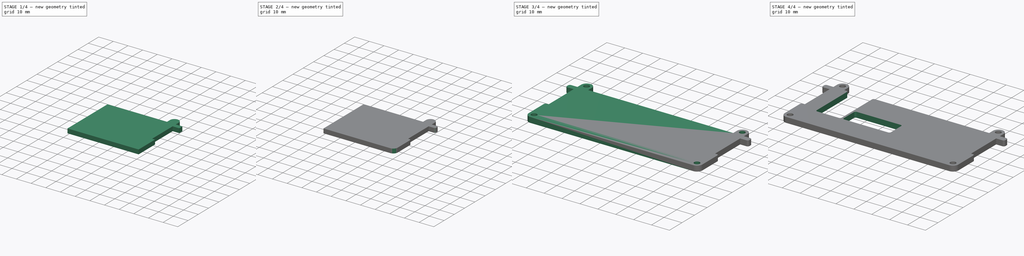
[diagram: build sequence overview — one tinted view per stage of 4, left to right]
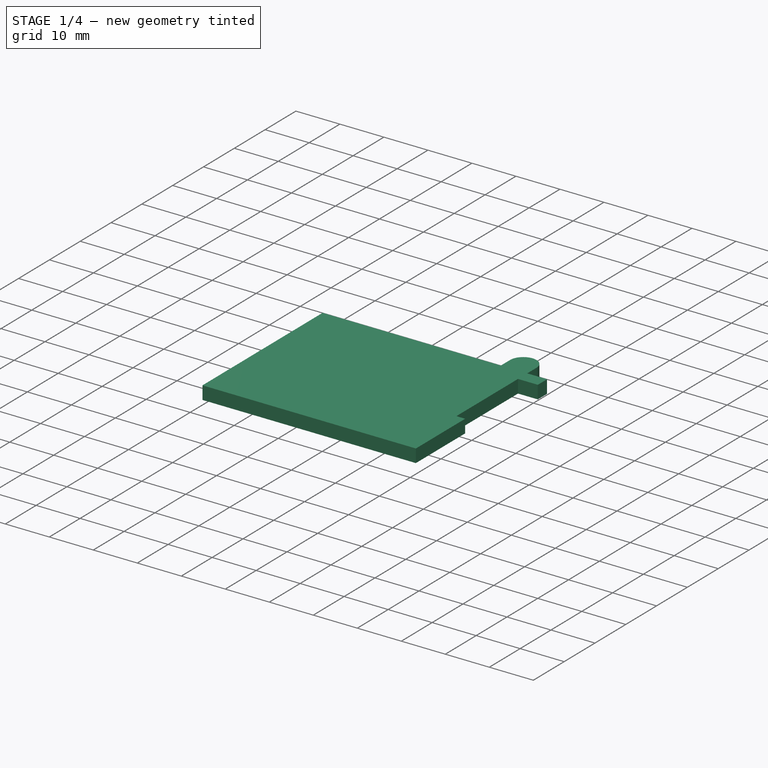
[diagram: stage 1 of 4 — iso view after this stage's code; geometry added in this stage tinted green]
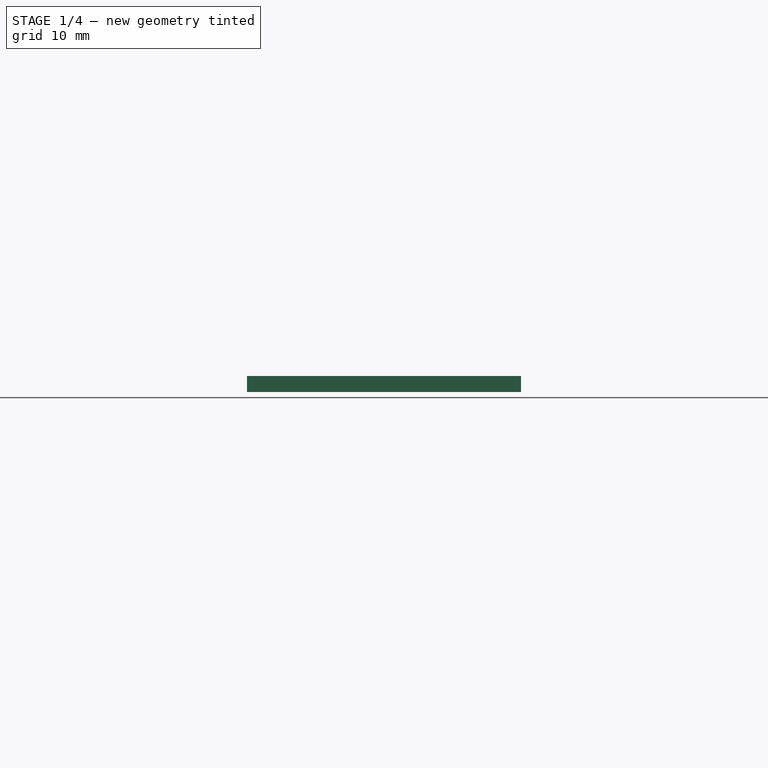
[diagram: stage 1 of 4 — front view after this stage's code; geometry added in this stage tinted green]
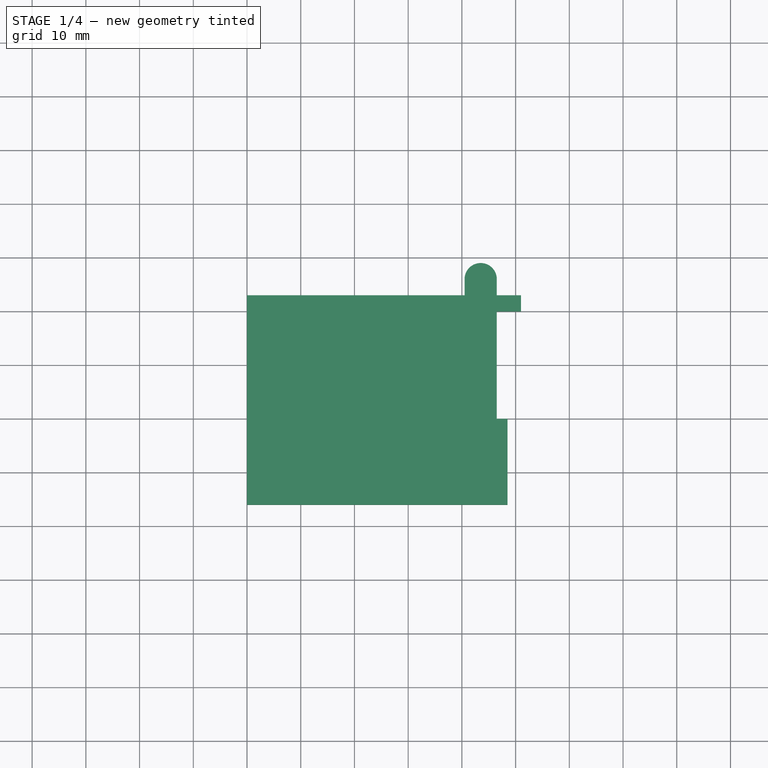
[diagram: stage 1 of 4 — top view after this stage's code; geometry added in this stage tinted green]
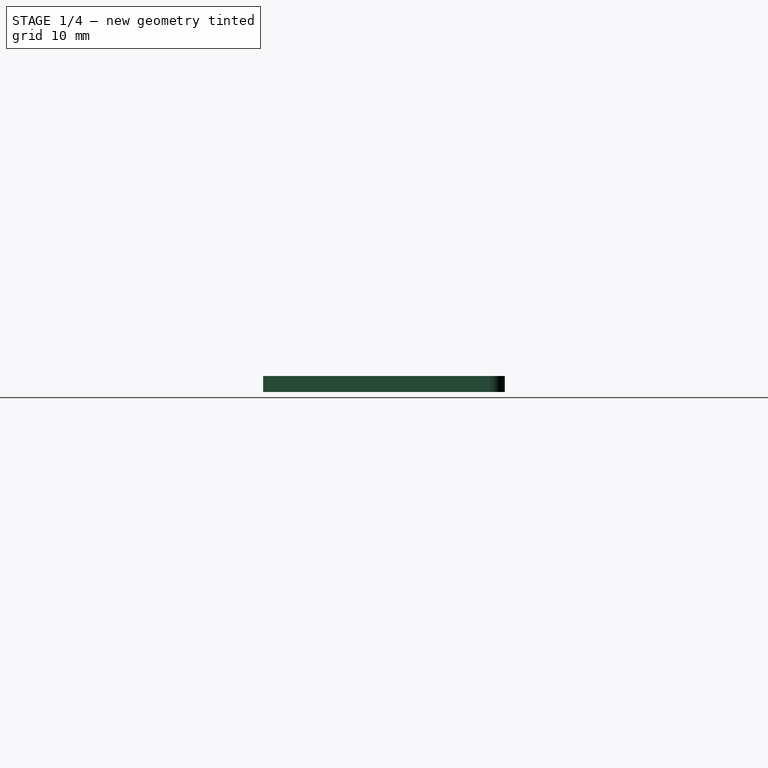
[diagram: stage 1 of 4 — right view after this stage's code; geometry added in this stage tinted green]
FCSTD DOCUMENT  (FreeCAD 1.0R39319 (Git))
Label: Pi5_Bagpack_bottom
License: All rights reserved
LicenseURL: https://en.wikipedia.org/wiki/All_rights_reserved
objects: Sketcher::SketchObject×5, PartDesign::Fillet×4, PartDesign::Pad×3, PartDesign::Pocket×2, PartDesign::Mirrored×1, PartDesign::Body×1, App::Part×1
note: 40 computed .brp shape members not serialized (recipe doc carries the construction recipe); baked Part::Feature solids carry a one-line shape summary decoded from their .brp

FEATURE [Sketcher::SketchObject] Sketch
  ArcFitTolerance = 1e-06
  AttachmentSupport = -> [XY_Plane001]
  FullyConstrained = true
  MakeInternals = false
  MapMode = 5
  sketch-geometry (8):
    g0: LineSegment StartX=0 StartY=3 StartZ=0 EndX=51 EndY=3 EndZ=0
    g1: LineSegment StartX=51 StartY=3 StartZ=0 EndX=51 EndY=0 EndZ=0
    g2: LineSegment StartX=51 StartY=0 StartZ=0 EndX=46.5 EndY=0 EndZ=0
    g3: LineSegment StartX=48.5 StartY=-36 StartZ=0 EndX=0 EndY=-36 EndZ=0
    g4: LineSegment StartX=48.5 StartY=-36 StartZ=0 EndX=48.5 EndY=-20 EndZ=0
    g5: LineSegment StartX=48.5 StartY=-20 StartZ=0 EndX=46.5 EndY=-20 EndZ=0
    g6: LineSegment StartX=46.5 StartY=-20 StartZ=0 EndX=46.5 EndY=0 EndZ=0
    g7: LineSegment StartX=0 StartY=-36 StartZ=0 EndX=0 EndY=3 EndZ=0
  constraints (24):
    c: PointOnObject(g3,g-2)
    c: Horizontal(g0)
    c: Coincident(g0,g1)
    c: PointOnObject(g1,g-1)
    c: Coincident(g1,g2)
    c: PointOnObject(g2,g-1)
    c: Horizontal(g3)
    c: Distance(g2,g0) = 3
    c: Vertical(g1)
    c: Distance(g1,g-2) = 51
    c: Coincident(g3,g4)
    c: Vertical(g4)
    c: Coincident(g4,g5)
    c: Coincident(g5,g6)
    c: Coincident(g6,g2)
    c: Horizontal(g5)
    c: Vertical(g6)
    c: Coincident(g7,g3)
    c: Coincident(g7,g0)
    c: PointOnObject(g0,g-2)
    c: Distance(g4,g7) = 48.5
    c: Distance(g7,g6) = 46.5
    c: Distance(g0,g3) = 39
    c: Distance(g3,g5) = 16
FEATURE [PartDesign::Pad] Pad
  Direction = (0,0,1)
  Length = 3
  Length2 = 10
  Profile = -> Sketch
  ReferenceAxis = -> Sketch [N_Axis]
  Refine = true
  Suppressed = false
  Type = 0
FEATURE [Sketcher::SketchObject] Sketch001
  ArcFitTolerance = 1e-06
  AttachmentSupport = -> [Pad]
  ExternalGeometry = -> [Pad]
  FullyConstrained = false
  MakeInternals = false
  MapMode = 5
  Placement = pos=(0,0,3) rot=(0,0,1;0rad)
  sketch-geometry (5):
    g0: LineSegment [constr] StartX=43.5 StartY=-11.2793 StartZ=0 EndX=43.5 EndY=3 EndZ=0
    g1: LineSegment StartX=46.5 StartY=6 StartZ=0 EndX=46.5 EndY=3 EndZ=0
    g2: LineSegment StartX=46.5 StartY=3 StartZ=0 EndX=40.5 EndY=3 EndZ=0
    g3: LineSegment StartX=40.5 StartY=3 StartZ=0 EndX=40.5 EndY=6 EndZ=0
    g4: ArcOfCircle CenterX=43.5 CenterY=6 CenterZ=0 NormalX=0 NormalY=0 NormalZ=1 AngleXU=0 Radius=3 StartAngle=0 EndAngle=3.14159
  constraints (14):
    c: Vertical(g0)
    c: PointOnObject(g0,g-4)
    c: Distance(g-3,g0) = 3
    c: PointOnObject(g1,g-4)
    c: Vertical(g1)
    c: Coincident(g1,g2)
    c: PointOnObject(g2,g-4)
    c: Coincident(g2,g3)
    c: Vertical(g3)
    c: Tangent(g3,g4) = 1.5708
    c: Tangent(g4,g1) = 1.5708
    c: Radius(g4) = 3
    c: DistanceY(g1,g1) = 3
    c: PointOnObject(g1,g-3)
FEATURE [PartDesign::Pad] Pad001
  BaseFeature = -> Pad
  Direction = (0,0,1)
  Length = 10
  Length2 = 10
  Profile = -> Sketch001
  ReferenceAxis = -> Sketch001 [N_Axis]
  Refine = true
  Suppressed = false
  Type = 3
  UpToFace = -> Pad [Face9]
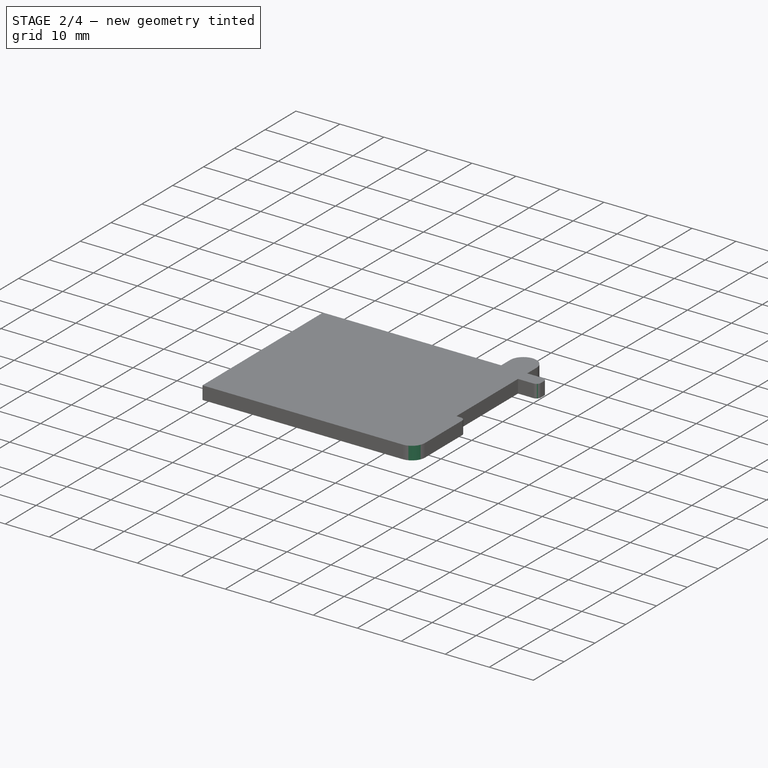
[diagram: stage 2 of 4 — iso view after this stage's code; geometry added in this stage tinted green]
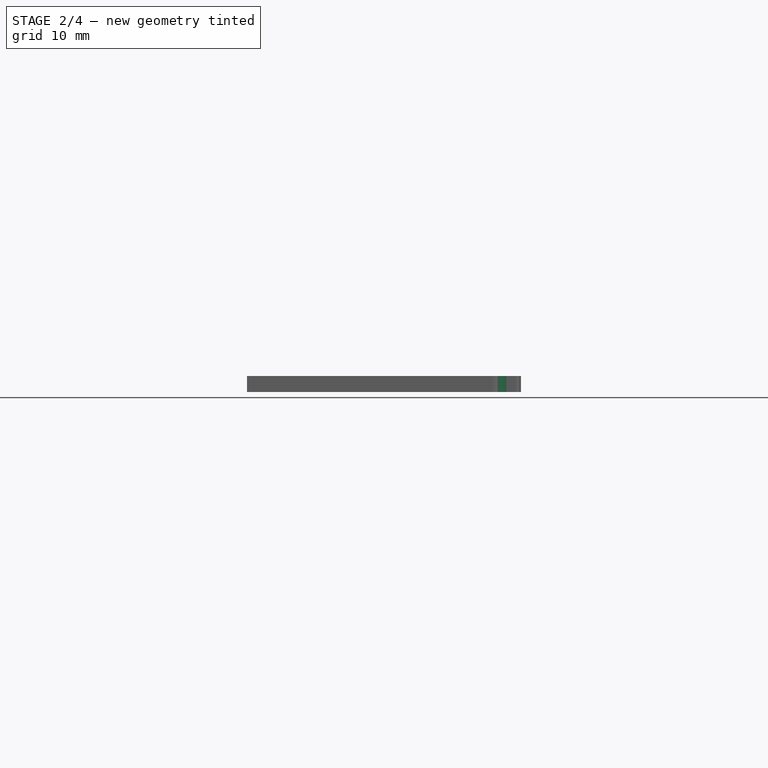
[diagram: stage 2 of 4 — front view after this stage's code; geometry added in this stage tinted green]
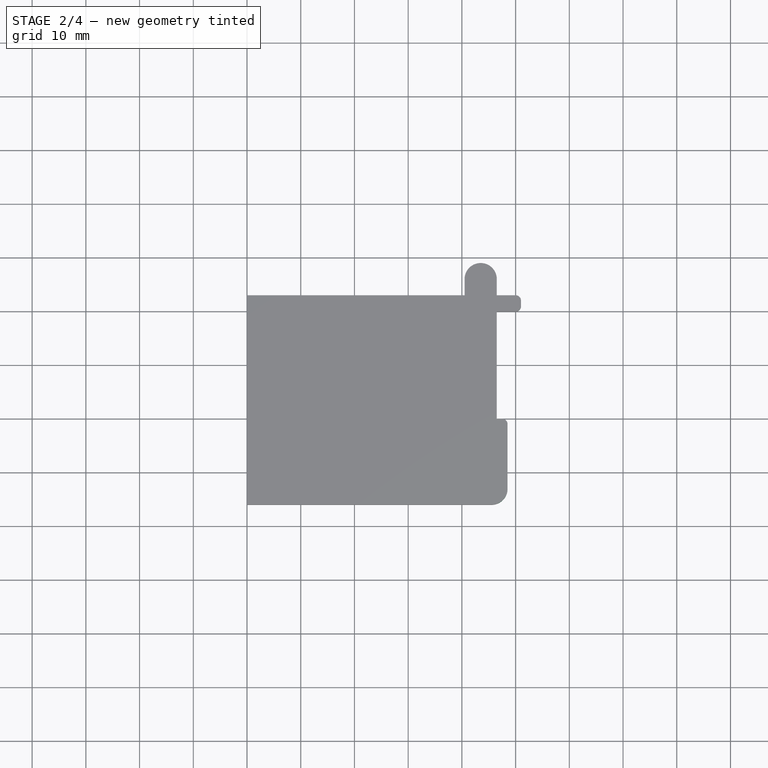
[diagram: stage 2 of 4 — top view after this stage's code; geometry added in this stage tinted green]
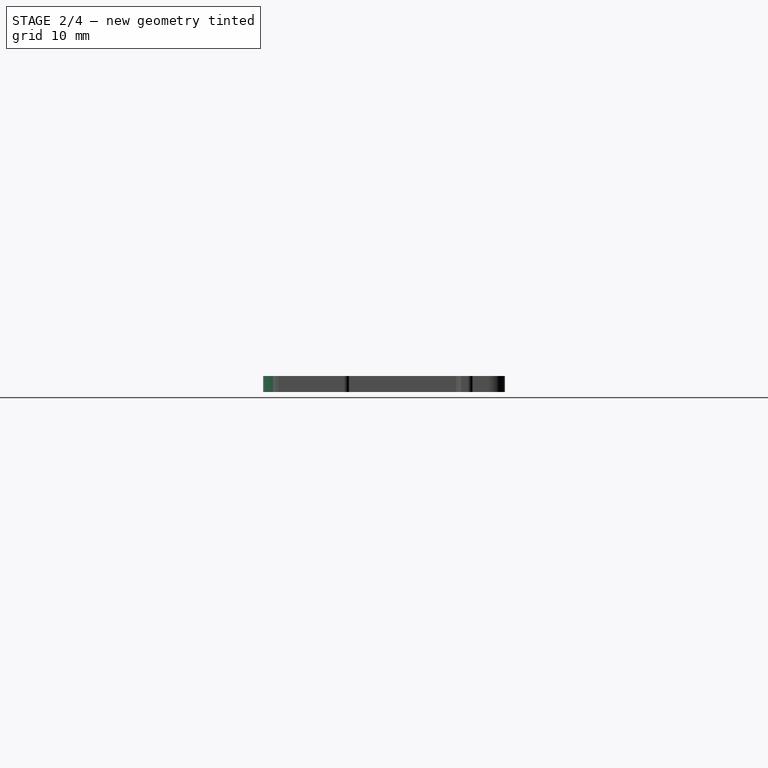
[diagram: stage 2 of 4 — right view after this stage's code; geometry added in this stage tinted green]
FEATURE [PartDesign::Fillet] Fillet
  Base = -> Pad001 [Edge1]
  BaseFeature = -> Pad001
  Radius = 3
  Refine = true
  SupportTransform = false
  Suppressed = false
  UseAllEdges = false
FEATURE [PartDesign::Fillet] Fillet001
  Base = -> Fillet [Edge31]
  BaseFeature = -> Fillet
  Radius = 1
  Refine = true
  SupportTransform = false
  Suppressed = false
  UseAllEdges = false
FEATURE [PartDesign::Fillet] Fillet002
  Base = -> Fillet001 [Edge34,Edge30]
  BaseFeature = -> Fillet001
  Radius = 1
  Refine = true
  SupportTransform = false
  Suppressed = false
  UseAllEdges = false
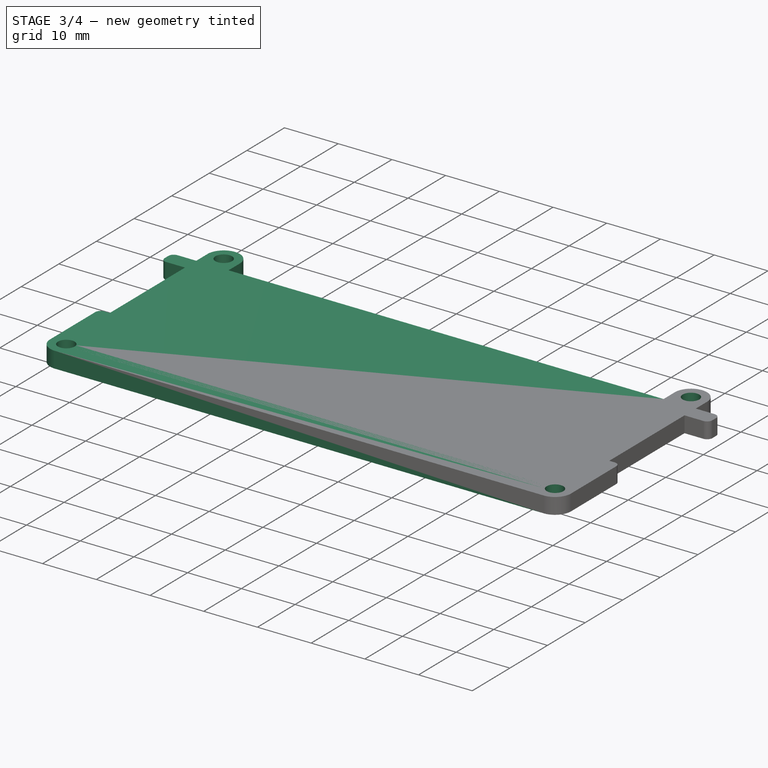
[diagram: stage 3 of 4 — iso view after this stage's code; geometry added in this stage tinted green]
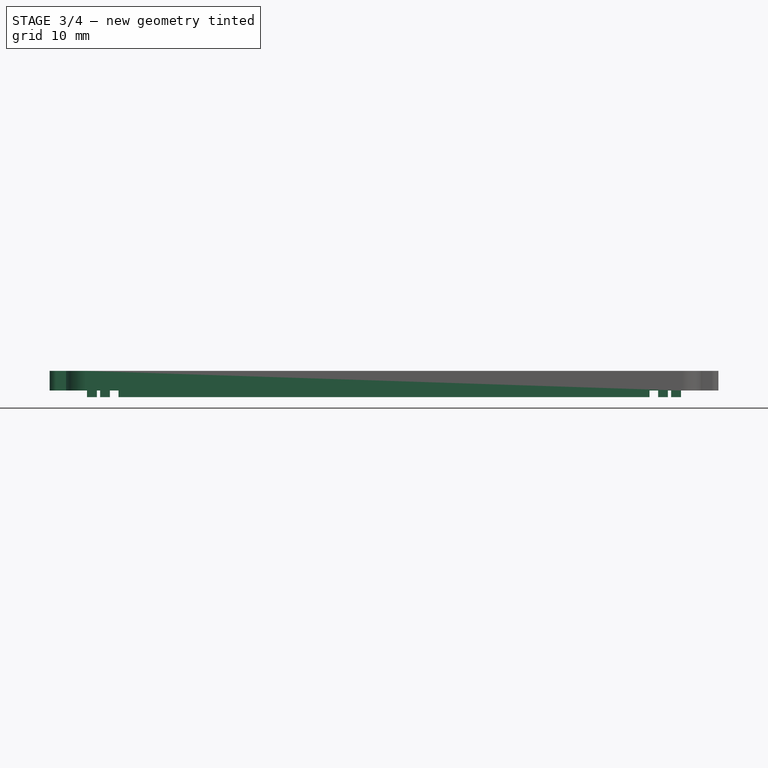
[diagram: stage 3 of 4 — front view after this stage's code; geometry added in this stage tinted green]
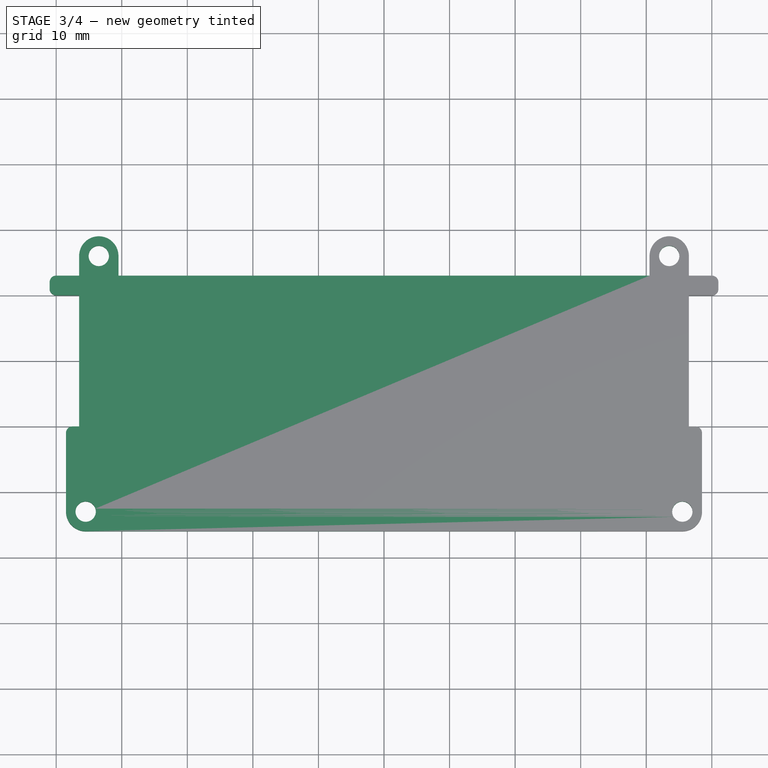
[diagram: stage 3 of 4 — top view after this stage's code; geometry added in this stage tinted green]
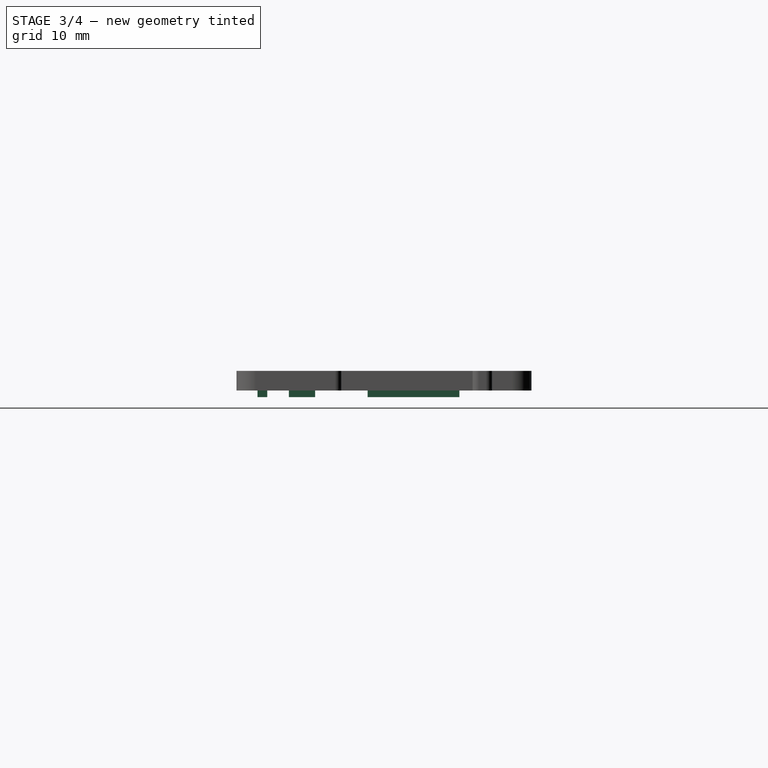
[diagram: stage 3 of 4 — right view after this stage's code; geometry added in this stage tinted green]
FEATURE [Sketcher::SketchObject] Sketch003
  ArcFitTolerance = 1e-06
  FullyConstrained = true
  MakeInternals = false
  MapMode = 5
  Placement = pos=(0,0,-3.7e-15) rot=(1,0,0;3.14159rad)
  sketch-geometry (12):
    g0: LineSegment StartX=41.8 StartY=16 StartZ=0 EndX=41.8 EndY=2 EndZ=0
    g1: LineSegment StartX=41.8 StartY=2 StartZ=0 EndX=43.3 EndY=2 EndZ=0
    g2: LineSegment StartX=43.3 StartY=2 StartZ=0 EndX=43.3 EndY=16 EndZ=0
    g3: LineSegment StartX=43.3 StartY=16 StartZ=0 EndX=41.8 EndY=16 EndZ=0
    g4: LineSegment StartX=43.8 StartY=28 StartZ=0 EndX=43.8 EndY=24 EndZ=0
    g5: LineSegment StartX=43.8 StartY=24 StartZ=0 EndX=45.3 EndY=24 EndZ=0
    g6: LineSegment StartX=45.3 StartY=24 StartZ=0 EndX=45.3 EndY=28 EndZ=0
    g7: LineSegment StartX=45.3 StartY=28 StartZ=0 EndX=43.8 EndY=28 EndZ=0
    g8: LineSegment StartX=40.5 StartY=32.8 StartZ=0 EndX=0 EndY=32.8 EndZ=0
    g9: LineSegment StartX=0 StartY=32.8 StartZ=0 EndX=0 EndY=31.3 EndZ=0
    g10: LineSegment StartX=0 StartY=31.3 StartZ=0 EndX=40.5 EndY=31.3 EndZ=0
    g11: LineSegment StartX=40.5 StartY=31.3 StartZ=0 EndX=40.5 EndY=32.8 EndZ=0
  constraints (36):
    c: Coincident(g0,g1)
    c: Coincident(g1,g2)
    c: Coincident(g2,g3)
    c: Coincident(g3,g0)
    c: Vertical(g0)
    c: Vertical(g2)
    c: Horizontal(g1)
    c: Horizontal(g3)
    c: Coincident(g4,g5)
    c: Coincident(g5,g6)
    c: Coincident(g6,g7)
    c: Coincident(g7,g4)
    c: Vertical(g4)
    c: Vertical(g6)
    c: Horizontal(g5)
    c: Horizontal(g7)
    c: Distance(g2,g0) = 1.5
    c: Distance(g6,g4) = 1.5
    c: Coincident(g8,g9)
    c: Coincident(g9,g10)
    c: Coincident(g10,g11)
    c: Coincident(g11,g8)
    c: Horizontal(g8)
    c: Horizontal(g10)
    c: Vertical(g9)
    c: Vertical(g11)
    c: PointOnObject(g9,g-2)
    c: Distance(g10,g8) = 1.5
    c: Distance(g-5,g8) = 3.2
    c: Distance(g-3,g6) = 3.2
    c: Distance(g-4,g2) = 3.2
    c: Distance(g3,g1) = 14
    c: Distance(g5,g7) = 4
    c: Distance(g9,g11) = 40.5
    c: Distance(g-6,g7) = 5
    c: Distance(g0,g-7) = 5
FEATURE [PartDesign::Pad] Pad002
  BaseFeature = -> Fillet002
  Direction = (0,-1e-16,-1)
  Length = 1
  Length2 = 10
  Profile = -> Sketch003
  ReferenceAxis = -> Sketch003 [N_Axis]
  Refine = true
  Suppressed = false
  Type = 0
FEATURE [Sketcher::SketchObject] Sketch004
  ArcFitTolerance = 1e-06
  AttachmentSupport = -> [Pad002]
  ExternalGeometry = -> [Pad002]
  FullyConstrained = true
  MakeInternals = false
  MapMode = 5
  Placement = pos=(0,0,0) rot=(1,0,0;3.14159rad)
  sketch-geometry (2):
    g0: Circle CenterX=45.5 CenterY=33 CenterZ=0 NormalX=0 NormalY=0 NormalZ=1 AngleXU=0 Radius=1.55
    g1: Circle CenterX=43.5 CenterY=-6 CenterZ=0 NormalX=0 NormalY=0 NormalZ=1 AngleXU=0 Radius=1.55
  constraints (4):
    c: Coincident(g0,g-3)
    c: Coincident(g1,g-4)
    c: Diameter(g0) = 3.1
    c: Diameter(g1) = 3.1
FEATURE [PartDesign::Pocket] Pocket
  BaseFeature = -> Pad002
  Direction = (0,0,1)
  Length = 5
  Length2 = 5
  Profile = -> Sketch004
  ReferenceAxis = -> Sketch004 [N_Axis]
  Refine = true
  Suppressed = false
  Type = 1
FEATURE [PartDesign::Mirrored] Mirrored
  BaseFeature = -> Pocket
  MirrorPlane = -> YZ_Plane001
  Refine = true
  Suppressed = false
  TransformMode = 1
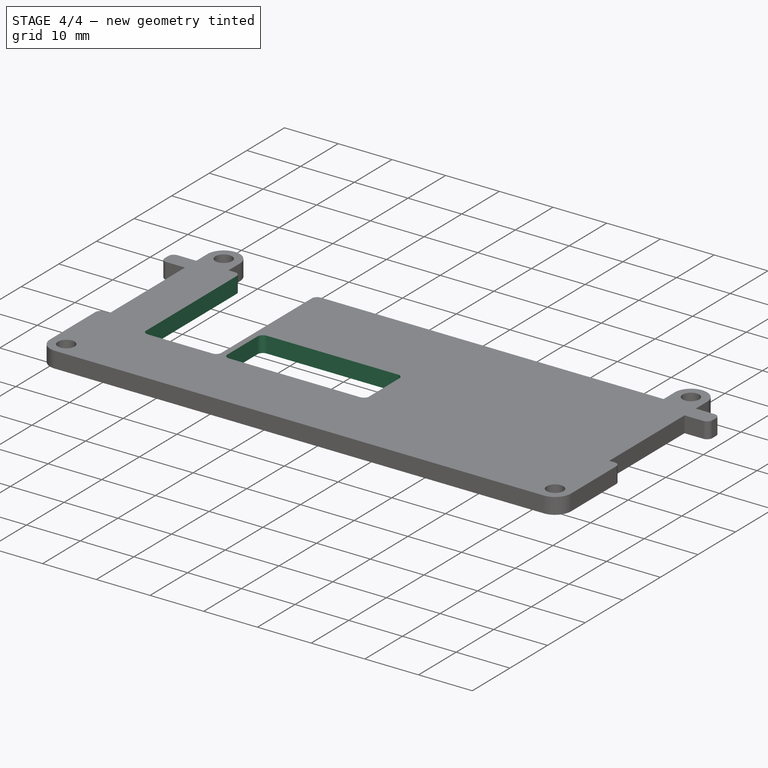
[diagram: stage 4 of 4 — iso view after this stage's code; geometry added in this stage tinted green]
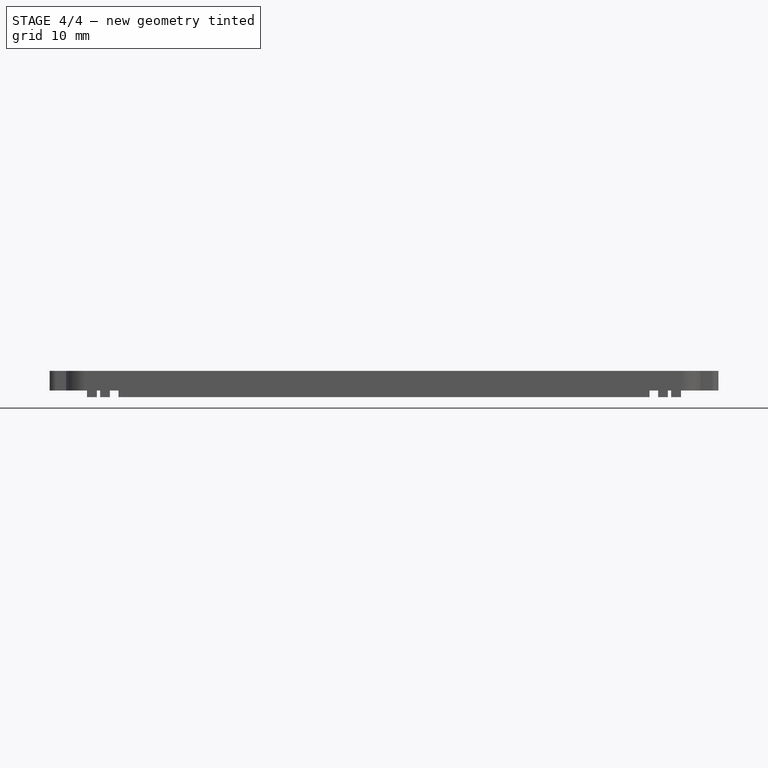
[diagram: stage 4 of 4 — front view after this stage's code; geometry added in this stage tinted green]
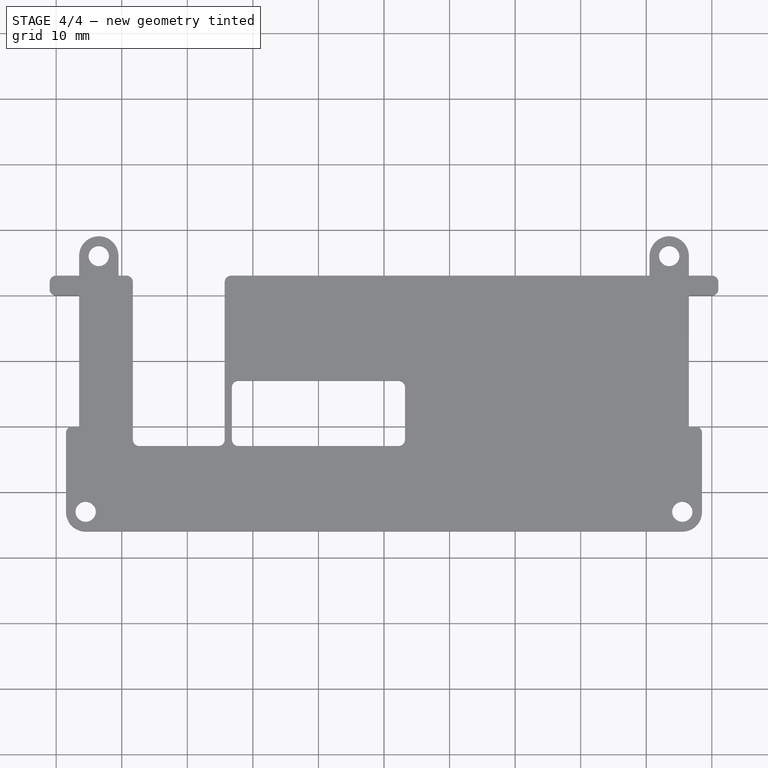
[diagram: stage 4 of 4 — top view after this stage's code; geometry added in this stage tinted green]
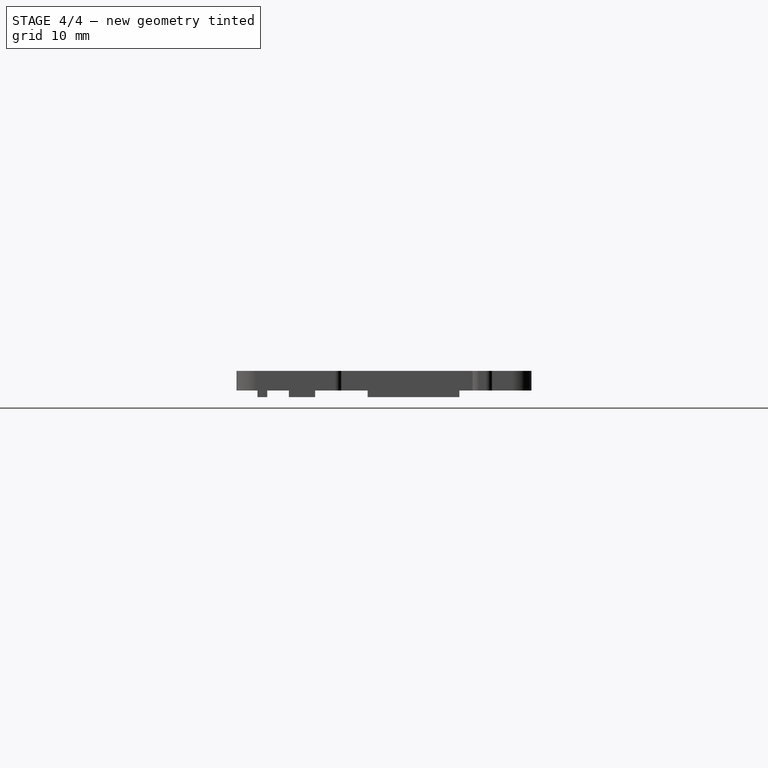
[diagram: stage 4 of 4 — right view after this stage's code; geometry added in this stage tinted green]
FEATURE [Sketcher::SketchObject] Sketch005
  ArcFitTolerance = 1e-06
  AttachmentSupport = -> [Mirrored]
  ExternalGeometry = -> [Mirrored]
  FullyConstrained = true
  MakeInternals = false
  MapMode = 5
  Placement = pos=(0,0,-3.6e-15) rot=(1,0,0;3.14159rad)
  sketch-geometry (8):
    g0: LineSegment StartX=-38.3 StartY=-3 StartZ=0 EndX=-24.3 EndY=-3 EndZ=0
    g1: LineSegment StartX=-24.3 StartY=-3 StartZ=0 EndX=-24.3 EndY=23 EndZ=0
    g2: LineSegment StartX=-24.3 StartY=23 StartZ=0 EndX=-38.3 EndY=23 EndZ=0
    g3: LineSegment StartX=-38.3 StartY=23 StartZ=0 EndX=-38.3 EndY=-3 EndZ=0
    g4: LineSegment StartX=-23.2 StartY=23 StartZ=0 EndX=-23.2 EndY=13 EndZ=0
    g5: LineSegment StartX=-23.2 StartY=13 StartZ=0 EndX=3.2 EndY=13 EndZ=0
    g6: LineSegment StartX=3.2 StartY=13 StartZ=0 EndX=3.2 EndY=23 EndZ=0
    g7: LineSegment StartX=3.2 StartY=23 StartZ=0 EndX=-23.2 EndY=23 EndZ=0
  constraints (24):
    c: Coincident(g0,g1)
    c: Coincident(g1,g2)
    c: Coincident(g2,g3)
    c: Coincident(g3,g0)
    c: Horizontal(g0)
    c: Horizontal(g2)
    c: Vertical(g1)
    c: Vertical(g3)
    c: PointOnObject(g0,g-3)
    c: Coincident(g4,g5)
    c: Coincident(g5,g6)
    c: Coincident(g6,g7)
    c: Coincident(g7,g4)
    c: Vertical(g4)
    c: Vertical(g6)
    c: Horizontal(g5)
    c: Horizontal(g7)
    c: Distance(g1,g3) = 14
    c: Distance(g-5,g2) = 13
    c: Distance(g3,g-4) = 8.2
    c: Distance(g5,g7) = 10
    c: Distance(g6,g4) = 26.4
    c: Distance(g4,g-4) = 23.3
    c: Distance(g-5,g7) = 13
FEATURE [PartDesign::Pocket] Pocket001
  BaseFeature = -> Mirrored
  Direction = (0,0,1)
  Length = 5
  Length2 = 5
  Profile = -> Sketch005
  ReferenceAxis = -> Sketch005 [N_Axis]
  Refine = true
  Suppressed = false
  Type = 1
FEATURE [PartDesign::Fillet] Fillet003
  Base = -> Pocket001 [Edge110,Edge113,Edge112,Edge160,Edge159,Edge161,Edge162,Edge111]
  BaseFeature = -> Pocket001
  Radius = 1
  Refine = true
  SupportTransform = false
  Suppressed = false
  UseAllEdges = false
FEATURE [PartDesign::Body] Body
  AllowCompound = false
  Group = -> [Sketch,Pad,Sketch001,Pad001,Fillet,Fillet001,Fillet002,Sketch003,Pad002,Sketch004,Pocket,Mirrored,Sketch005,Pocket001,Fillet003]
  Origin = -> Origin001
  Tip = -> Fillet003
FEATURE [App::Part] Part  label="Pi5 Bagpack_bottom"
  Group = -> [Body]
  Origin = -> Origin
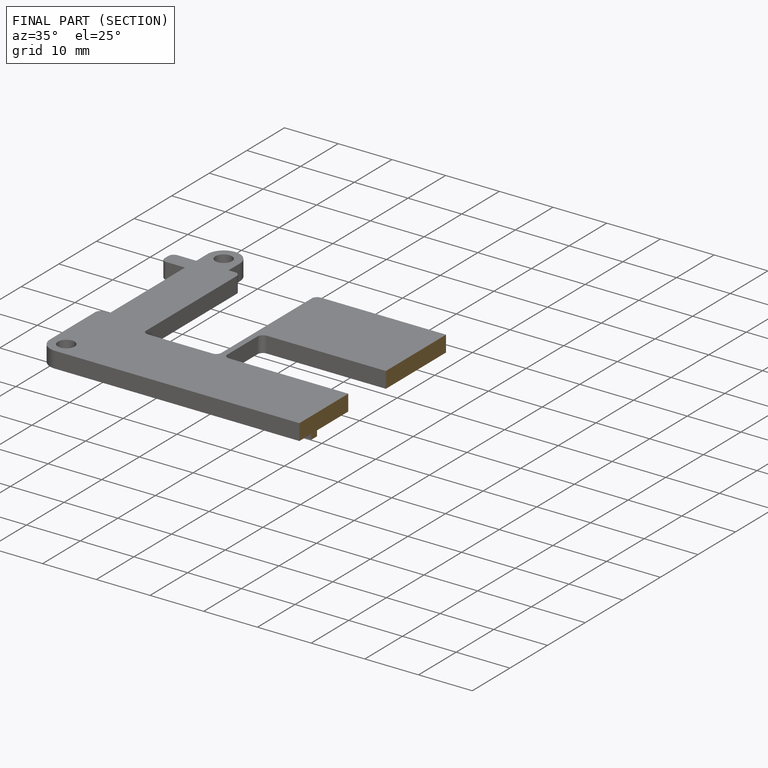
[diagram: finished part — half-section view (interior)]
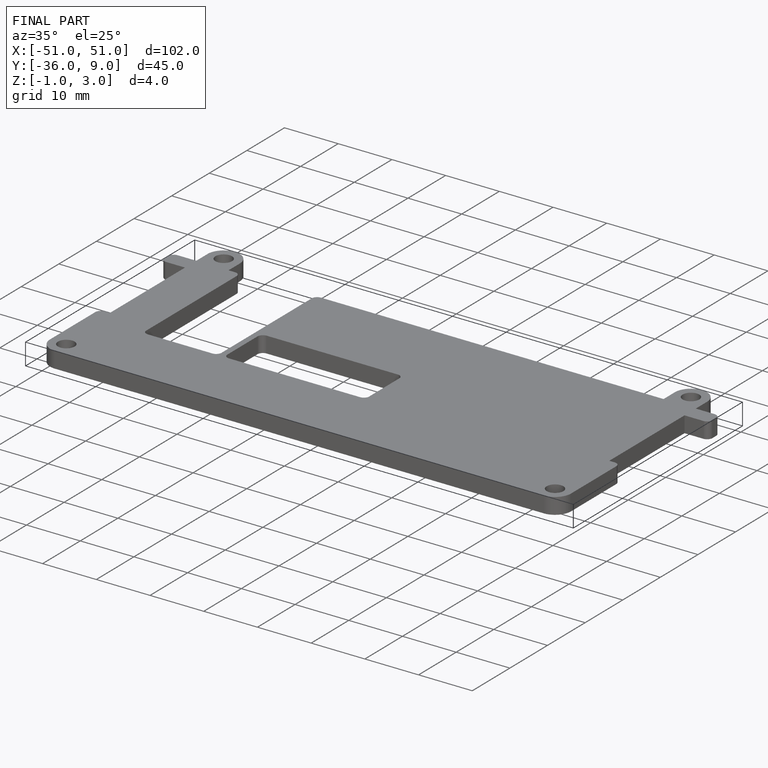
[diagram: finished part — iso view with bounding-box wireframe]
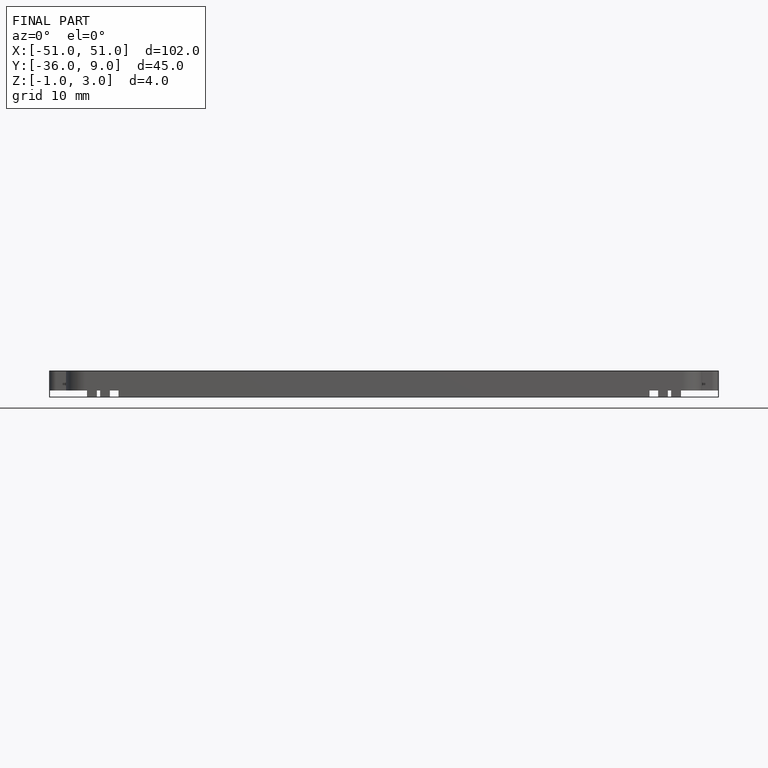
[diagram: finished part — front view with bounding-box wireframe]
